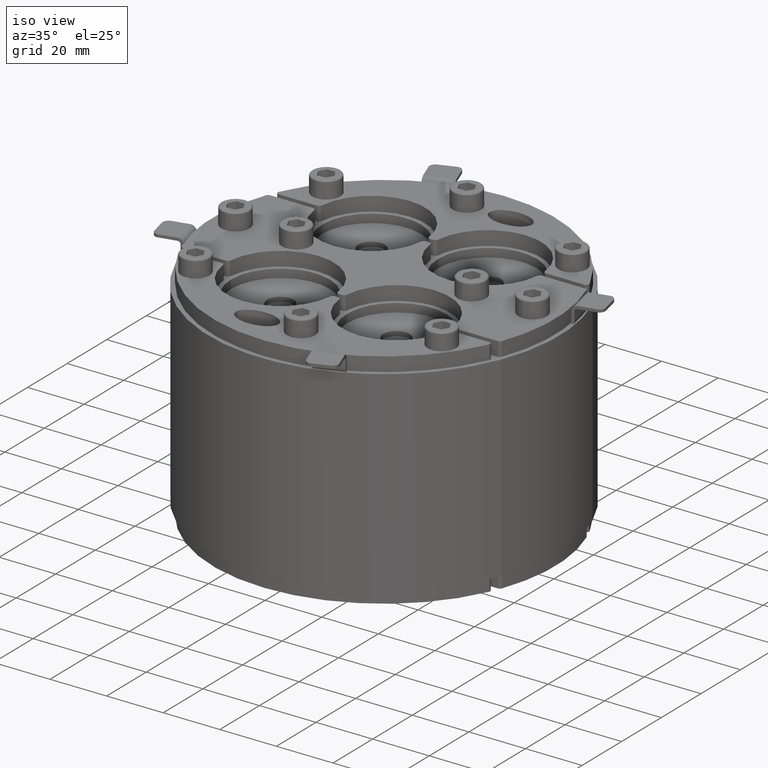
[diagram: clean part render]
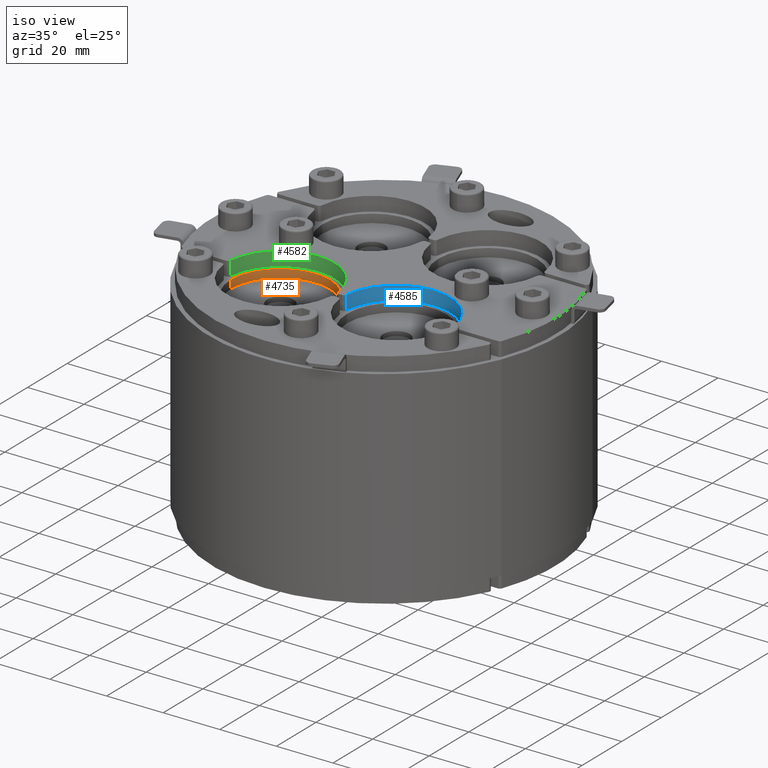
[diagram: same view with three faces highlighted in distinct colors, each labeled with its STEP entity id]
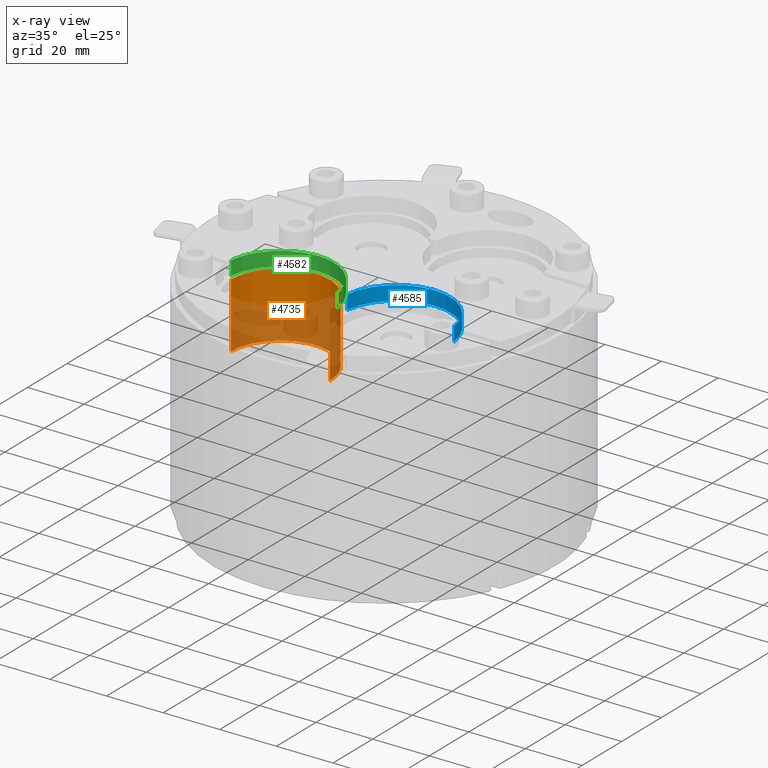
[diagram: x-ray of the same camera — body ghosted, the three highlighted faces saturated]
A machine part, iso view with three faces highlighted in distinct colors.
The next image is the same camera in x-ray (body ghosted, the three faces saturated) — at least one of them is partly hidden behind the body in this view.
Their STEP definitions:

[orange] entity #4735 — the highlighted cylindrical surface (partial cylindrical patch) has radius 17.5 mm, axis along (0, -0, 1).
#690=FACE_OUTER_BOUND('',#994,.T.);
#994=EDGE_LOOP('',(#3963,#3964,#3965,#3966));
#1341=LINE('',#8116,#1708);
#1342=LINE('',#8122,#1709);
#1708=VECTOR('',#6617,10.);
#1709=VECTOR('',#6624,10.);
#2037=CIRCLE('',#5466,17.5);
#2038=CIRCLE('',#5467,17.5);
#2383=VERTEX_POINT('',#8112);
#2384=VERTEX_POINT('',#8114);
#2385=VERTEX_POINT('',#8118);
#2386=VERTEX_POINT('',#8120);
#2944=EDGE_CURVE('',#2383,#2384,#1341,.T.);
#2945=EDGE_CURVE('',#2385,#2383,#2037,.T.);
#2946=EDGE_CURVE('',#2386,#2384,#2038,.T.);
#2947=EDGE_CURVE('',#2385,#2386,#1342,.T.);
#3963=ORIENTED_EDGE('',*,*,#2945,.T.);
#3964=ORIENTED_EDGE('',*,*,#2944,.T.);
#3965=ORIENTED_EDGE('',*,*,#2946,.F.);
#3966=ORIENTED_EDGE('',*,*,#2947,.F.);
#4537=CYLINDRICAL_SURFACE('',#5465,17.5);
#4735=ADVANCED_FACE('',(#690),#4537,.F.);
#5465=AXIS2_PLACEMENT_3D('',#8117,#6618,#6619);
#5466=AXIS2_PLACEMENT_3D('',#8119,#6620,#6621);
#5467=AXIS2_PLACEMENT_3D('',#8121,#6622,#6623);
#6617=DIRECTION('',(0.,0.,1.));
#6618=DIRECTION('center_axis',(0.,0.,1.));
#6619=DIRECTION('ref_axis',(-1.,0.,0.));
#6620=DIRECTION('center_axis',(0.,0.,-1.));
#6621=DIRECTION('ref_axis',(-1.,0.,0.));
#6622=DIRECTION('center_axis',(0.,0.,-1.));
#6623=DIRECTION('ref_axis',(-1.,0.,0.));
#6624=DIRECTION('',(0.,0.,1.));
#8112=CARTESIAN_POINT('',(-3.,-23.,0.));
#8114=CARTESIAN_POINT('',(-3.,-23.,23.));
#8116=CARTESIAN_POINT('',(-3.,-23.,0.));
#8117=CARTESIAN_POINT('Origin',(-20.5,-23.,0.));
#8118=CARTESIAN_POINT('',(-38.,-23.,0.));
#8119=CARTESIAN_POINT('Origin',(-20.5,-23.,0.));
#8120=CARTESIAN_POINT('',(-38.,-23.,23.));
#8121=CARTESIAN_POINT('Origin',(-20.5,-23.,23.));
#8122=CARTESIAN_POINT('',(-38.,-23.,0.));

[blue] entity #4585 — the highlighted cylindrical surface (partial cylindrical patch) has radius 19 mm, axis along (0, -0, 1).
#540=FACE_OUTER_BOUND('',#816,.T.);
#816=EDGE_LOOP('',(#3227,#3228,#3229,#3230));
#1137=LINE('',#7334,#1504);
#1138=LINE('',#7338,#1505);
#1504=VECTOR('',#5793,10.);
#1505=VECTOR('',#5798,10.);
#1865=CIRCLE('',#5131,19.);
#1885=CIRCLE('',#5156,19.);
#2130=VERTEX_POINT('',#7274);
#2131=VERTEX_POINT('',#7276);
#2155=VERTEX_POINT('',#7332);
#2156=VERTEX_POINT('',#7336);
#2550=EDGE_CURVE('',#2130,#2131,#1865,.F.);
#2579=EDGE_CURVE('',#2155,#2130,#1137,.T.);
#2580=EDGE_CURVE('',#2155,#2156,#1885,.F.);
#2581=EDGE_CURVE('',#2131,#2156,#1138,.T.);
#3227=ORIENTED_EDGE('',*,*,#2579,.F.);
#3228=ORIENTED_EDGE('',*,*,#2580,.T.);
#3229=ORIENTED_EDGE('',*,*,#2581,.F.);
#3230=ORIENTED_EDGE('',*,*,#2550,.F.);
#4457=CYLINDRICAL_SURFACE('',#5155,19.);
#4585=ADVANCED_FACE('',(#540),#4457,.F.);
#5131=AXIS2_PLACEMENT_3D('',#7277,#5736,#5737);
#5155=AXIS2_PLACEMENT_3D('',#7335,#5794,#5795);
#5156=AXIS2_PLACEMENT_3D('',#7337,#5796,#5797);
#5736=DIRECTION('center_axis',(0.,0.,1.));
#5737=DIRECTION('ref_axis',(-1.,0.,0.));
#5793=DIRECTION('',(0.,0.,1.));
#5794=DIRECTION('center_axis',(0.,0.,1.));
#5795=DIRECTION('ref_axis',(-1.,0.,0.));
#5796=DIRECTION('center_axis',(0.,0.,1.));
#5797=DIRECTION('ref_axis',(-1.,0.,0.));
#5798=DIRECTION('',(0.,0.,-1.));
#7274=CARTESIAN_POINT('',(1.59523869497423,-21.1,5.));
#7276=CARTESIAN_POINT('',(39.4047613050258,-21.1,5.));
#7277=CARTESIAN_POINT('Origin',(20.5,-23.,5.));
#7332=CARTESIAN_POINT('',(1.59523869497423,-21.1,0.));
#7334=CARTESIAN_POINT('',(1.59523869497423,-21.1,0.));
#7335=CARTESIAN_POINT('Origin',(20.5,-23.,0.));
#7336=CARTESIAN_POINT('',(39.4047613050258,-21.1,0.));
#7337=CARTESIAN_POINT('Origin',(20.5,-23.,0.));
#7338=CARTESIAN_POINT('',(39.4047613050258,-21.1,0.));

[green] entity #4582 — the highlighted cylindrical surface (partial cylindrical patch) has radius 19 mm, axis along (0, -0, 1).
#537=FACE_OUTER_BOUND('',#813,.T.);
#813=EDGE_LOOP('',(#3215,#3216,#3217,#3218));
#1133=LINE('',#7320,#1500);
#1134=LINE('',#7324,#1501);
#1500=VECTOR('',#5777,10.);
#1501=VECTOR('',#5782,10.);
#1862=CIRCLE('',#5128,19.);
#1882=CIRCLE('',#5150,19.);
#2126=VERTEX_POINT('',#7266);
#2127=VERTEX_POINT('',#7268);
#2151=VERTEX_POINT('',#7318);
#2152=VERTEX_POINT('',#7322);
#2546=EDGE_CURVE('',#2126,#2127,#1862,.F.);
#2572=EDGE_CURVE('',#2151,#2126,#1133,.T.);
#2573=EDGE_CURVE('',#2151,#2152,#1882,.F.);
#2574=EDGE_CURVE('',#2127,#2152,#1134,.T.);
#3215=ORIENTED_EDGE('',*,*,#2572,.F.);
#3216=ORIENTED_EDGE('',*,*,#2573,.T.);
#3217=ORIENTED_EDGE('',*,*,#2574,.F.);
#3218=ORIENTED_EDGE('',*,*,#2546,.F.);
#4454=CYLINDRICAL_SURFACE('',#5149,19.);
#4582=ADVANCED_FACE('',(#537),#4454,.F.);
#5128=AXIS2_PLACEMENT_3D('',#7269,#5729,#5730);
#5149=AXIS2_PLACEMENT_3D('',#7321,#5778,#5779);
#5150=AXIS2_PLACEMENT_3D('',#7323,#5780,#5781);
#5729=DIRECTION('center_axis',(0.,0.,1.));
#5730=DIRECTION('ref_axis',(-1.,0.,0.));
#5777=DIRECTION('',(0.,0.,1.));
#5778=DIRECTION('center_axis',(0.,0.,1.));
#5779=DIRECTION('ref_axis',(-1.,0.,0.));
#5780=DIRECTION('center_axis',(0.,0.,1.));
#5781=DIRECTION('ref_axis',(-1.,0.,0.));
#5782=DIRECTION('',(0.,0.,-1.));
#7266=CARTESIAN_POINT('',(-39.4047613050258,-21.1,5.));
#7268=CARTESIAN_POINT('',(-1.59523869497422,-21.1,5.));
#7269=CARTESIAN_POINT('Origin',(-20.5,-23.,5.));
#7318=CARTESIAN_POINT('',(-39.4047613050258,-21.1,0.));
#7320=CARTESIAN_POINT('',(-39.4047613050258,-21.1,0.));
#7321=CARTESIAN_POINT('Origin',(-20.5,-23.,0.));
#7322=CARTESIAN_POINT('',(-1.59523869497422,-21.1,0.));
#7323=CARTESIAN_POINT('Origin',(-20.5,-23.,0.));
#7324=CARTESIAN_POINT('',(-1.59523869497422,-21.1,0.));